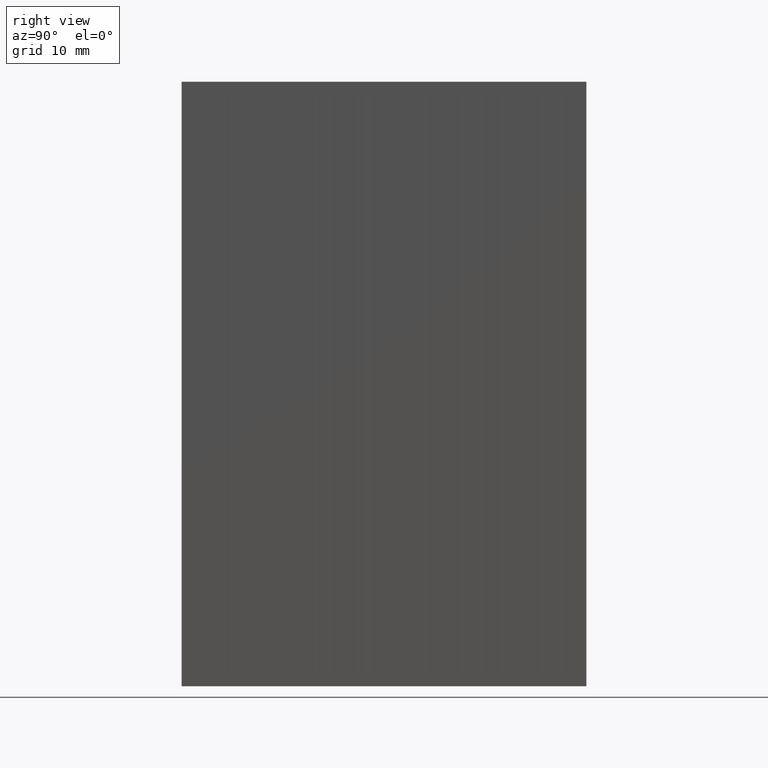
[diagram: clean part render]
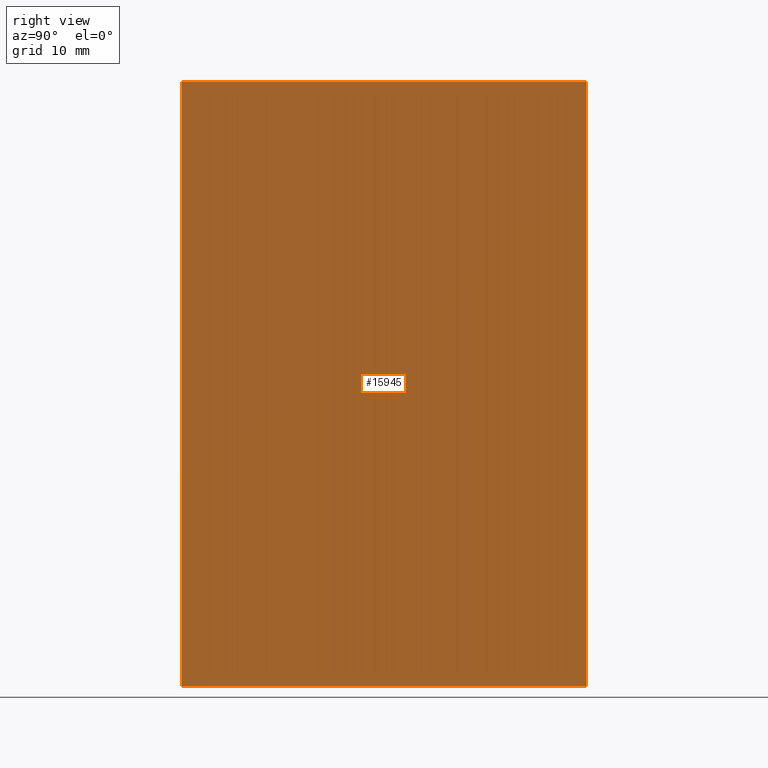
[diagram: same view with one face highlighted and labeled with its STEP entity id]
A machine part, right view. The second image highlights one B-rep face of the part: STEP entity #15945.
In plain terms, the highlighted planar face has unit normal (-0.998, 0.0639, 0).
Its self-contained STEP definition (entity closure, byte-faithful):
#721 = CARTESIAN_POINT ( 'NONE',  ( 1.500000000000005773, -25.00000000000000000, -37.35000000000000142 ) ) ;
#947 = LINE ( 'NONE', #6316, #3768 ) ;
#1465 = AXIS2_PLACEMENT_3D ( 'NONE', #11314, #15087, #11148 ) ;
#1508 = VERTEX_POINT ( 'NONE', #1540 ) ;
#1540 = CARTESIAN_POINT ( 'NONE',  ( 1.500000000000005773, -25.00000000000000000, 37.35000000000000142 ) ) ;
#1575 = DIRECTION ( 'NONE',  ( 0.06386932928370206430, 0.9979582700578466525, -0.000000000000000000 ) ) ;
#2044 = LINE ( 'NONE', #16484, #16152 ) ;
#2451 = DIRECTION ( 'NONE',  ( 0.06386932928370206430, 0.9979582700578466525, -0.000000000000000000 ) ) ;
#2598 = VERTEX_POINT ( 'NONE', #721 ) ;
#3094 = ORIENTED_EDGE ( 'NONE', *, *, #11483, .F. ) ;
#3768 = VECTOR ( 'NONE', #2451, 1000.000000000000114 ) ;
#4428 = LINE ( 'NONE', #15606, #5624 ) ;
#5136 = LINE ( 'NONE', #16420, #10574 ) ;
#5624 = VECTOR ( 'NONE', #1575, 1000.000000000000114 ) ;
#5912 = EDGE_CURVE ( 'NONE', #1508, #14269, #4428, .T. ) ;
#6160 = DIRECTION ( 'NONE',  ( -0.000000000000000000, -0.000000000000000000, -1.000000000000000000 ) ) ;
#6316 = CARTESIAN_POINT ( 'NONE',  ( 4.699999999999999289, 25.00000000000000000, -37.35000000000000142 ) ) ;
#6943 = ORIENTED_EDGE ( 'NONE', *, *, #15464, .T. ) ;
#7637 = DIRECTION ( 'NONE',  ( -0.000000000000000000, -0.000000000000000000, -1.000000000000000000 ) ) ;
#8390 = EDGE_CURVE ( 'NONE', #2598, #12653, #947, .T. ) ;
#10033 = PLANE ( 'NONE',  #1465 ) ;
#10574 = VECTOR ( 'NONE', #6160, 1000.000000000000000 ) ;
#11148 = DIRECTION ( 'NONE',  ( -0.06386932928370206430, -0.9979582700578466525, 0.000000000000000000 ) ) ;
#11314 = CARTESIAN_POINT ( 'NONE',  ( 4.699999999999999289, 25.00000000000000000, 37.35000000000000142 ) ) ;
#11355 = ORIENTED_EDGE ( 'NONE', *, *, #5912, .F. ) ;
#11483 = EDGE_CURVE ( 'NONE', #14269, #12653, #5136, .T. ) ;
#12512 = CARTESIAN_POINT ( 'NONE',  ( 4.699999999999999289, 25.00000000000000000, 37.35000000000000142 ) ) ;
#12617 = ORIENTED_EDGE ( 'NONE', *, *, #8390, .T. ) ;
#12653 = VERTEX_POINT ( 'NONE', #16322 ) ;
#13503 = EDGE_LOOP ( 'NONE', ( #12617, #3094, #11355, #6943 ) ) ;
#14119 = FACE_OUTER_BOUND ( 'NONE', #13503, .T. ) ;
#14269 = VERTEX_POINT ( 'NONE', #12512 ) ;
#15087 = DIRECTION ( 'NONE',  ( -0.9979582700578466525, 0.06386932928370206430, 0.000000000000000000 ) ) ;
#15464 = EDGE_CURVE ( 'NONE', #1508, #2598, #2044, .T. ) ;
#15606 = CARTESIAN_POINT ( 'NONE',  ( 4.699999999999999289, 25.00000000000000000, 37.35000000000000142 ) ) ;
#15945 = ADVANCED_FACE ( 'NONE', ( #14119 ), #10033, .F. ) ;
#16152 = VECTOR ( 'NONE', #7637, 1000.000000000000000 ) ;
#16322 = CARTESIAN_POINT ( 'NONE',  ( 4.699999999999999289, 25.00000000000000000, -37.35000000000000142 ) ) ;
#16420 = CARTESIAN_POINT ( 'NONE',  ( 4.699999999999999289, 25.00000000000000000, 37.35000000000000142 ) ) ;
#16484 = CARTESIAN_POINT ( 'NONE',  ( 1.500000000000005773, -25.00000000000000000, 37.35000000000000142 ) ) ;